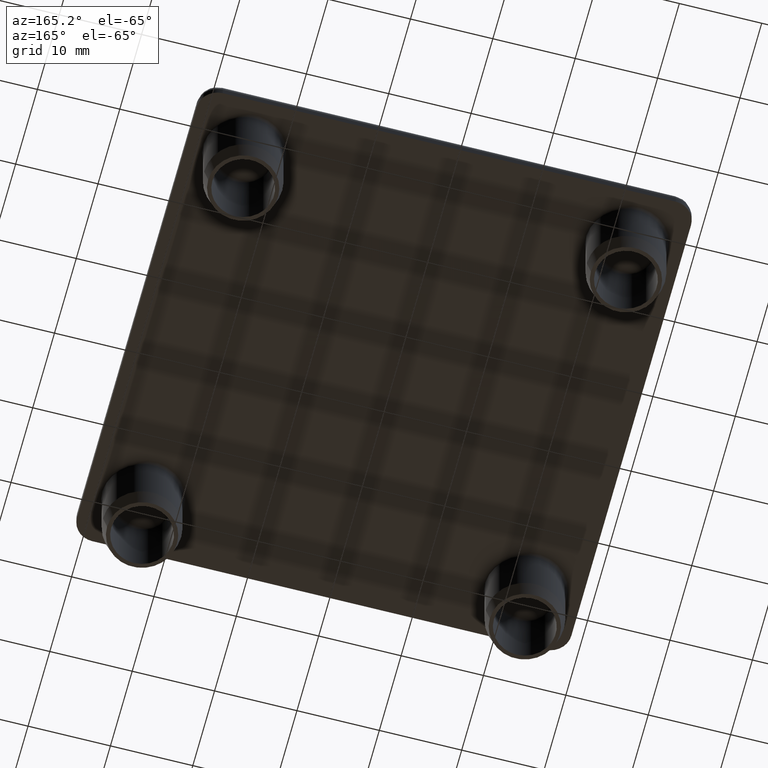
[diagram: clean part render]
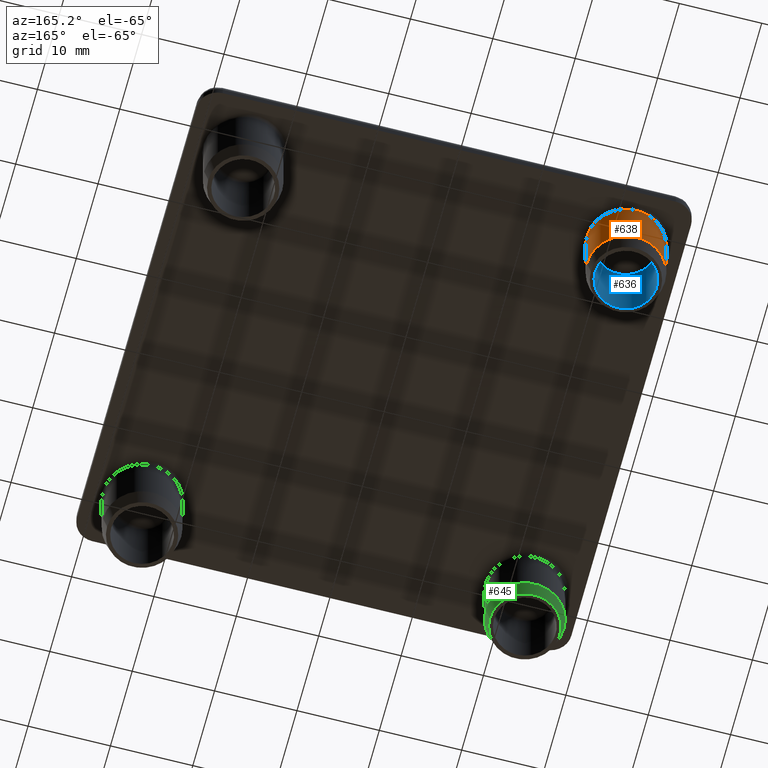
[diagram: same view with three faces highlighted in distinct colors, each labeled with its STEP entity id]
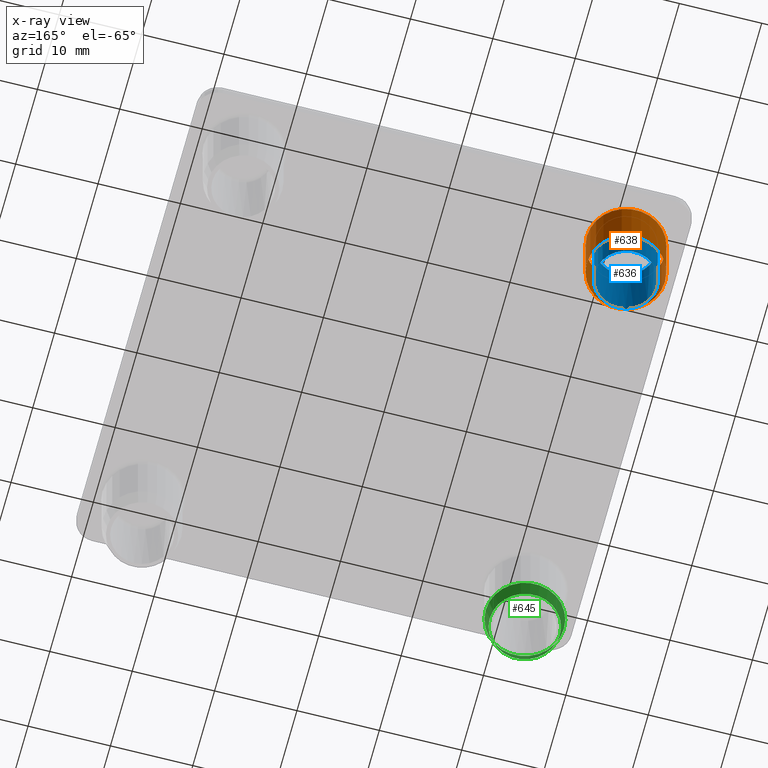
[diagram: x-ray of the same camera — body ghosted, the three highlighted faces saturated]
A machine part, auxiliary view with three faces highlighted in distinct colors.
The next image is the same camera in x-ray (body ghosted, the three faces saturated) — at least one of them is partly hidden behind the body in this view.
Their STEP definitions:

[orange] entity #638 — the highlighted cylindrical surface (bore or boss wall) has radius 4.75 mm, axis along (0, 0, 1).
#76=CYLINDRICAL_SURFACE('',#710,4.75);
#108=FACE_BOUND('',#192,.T.);
#134=FACE_OUTER_BOUND('',#191,.T.);
#191=EDGE_LOOP('',(#481));
#192=EDGE_LOOP('',(#482));
#250=CIRCLE('',#683,4.75);
#263=CIRCLE('',#701,4.75);
#314=VERTEX_POINT('',#1037);
#327=VERTEX_POINT('',#1068);
#374=EDGE_CURVE('',#314,#314,#250,.T.);
#387=EDGE_CURVE('',#327,#327,#263,.T.);
#481=ORIENTED_EDGE('',*,*,#374,.T.);
#482=ORIENTED_EDGE('',*,*,#387,.T.);
#638=ADVANCED_FACE('',(#134,#108),#76,.T.);
#683=AXIS2_PLACEMENT_3D('',#1038,#797,#798);
#701=AXIS2_PLACEMENT_3D('',#1069,#833,#834);
#710=AXIS2_PLACEMENT_3D('',#1081,#851,#852);
#797=DIRECTION('center_axis',(0.,0.,1.));
#798=DIRECTION('ref_axis',(1.,0.,0.));
#833=DIRECTION('center_axis',(0.,0.,-1.));
#834=DIRECTION('ref_axis',(-1.,0.,0.));
#851=DIRECTION('center_axis',(0.,0.,1.));
#852=DIRECTION('ref_axis',(0.,-1.,0.));
#1037=CARTESIAN_POINT('',(-18.48,53.23,-8.));
#1038=CARTESIAN_POINT('Origin',(-23.23,53.23,-8.));
#1068=CARTESIAN_POINT('',(-27.98,53.23,-0.500000000000003));
#1069=CARTESIAN_POINT('Origin',(-23.23,53.23,-0.500000000000002));
#1081=CARTESIAN_POINT('Origin',(-23.23,53.23,-8.00000001));

[blue] entity #636 — the highlighted cylindrical surface (bore or boss wall) has radius 3.75 mm, axis along (0, 0, 1).
#74=CYLINDRICAL_SURFACE('',#706,3.75);
#106=FACE_BOUND('',#188,.T.);
#132=FACE_OUTER_BOUND('',#187,.T.);
#187=EDGE_LOOP('',(#476));
#188=EDGE_LOOP('',(#477,#478));
#255=CIRCLE('',#691,3.75);
#267=CIRCLE('',#707,3.75);
#268=CIRCLE('',#708,3.75);
#319=VERTEX_POINT('',#1050);
#320=VERTEX_POINT('',#1051);
#330=VERTEX_POINT('',#1077);
#379=EDGE_CURVE('',#319,#320,#255,.T.);
#391=EDGE_CURVE('',#330,#330,#267,.T.);
#392=EDGE_CURVE('',#320,#319,#268,.T.);
#476=ORIENTED_EDGE('',*,*,#391,.F.);
#477=ORIENTED_EDGE('',*,*,#379,.T.);
#478=ORIENTED_EDGE('',*,*,#392,.T.);
#636=ADVANCED_FACE('',(#132,#106),#74,.F.);
#691=AXIS2_PLACEMENT_3D('',#1052,#813,#814);
#706=AXIS2_PLACEMENT_3D('',#1076,#843,#844);
#707=AXIS2_PLACEMENT_3D('',#1078,#845,#846);
#708=AXIS2_PLACEMENT_3D('',#1079,#847,#848);
#813=DIRECTION('center_axis',(0.,0.,1.));
#814=DIRECTION('ref_axis',(1.,0.,0.));
#843=DIRECTION('center_axis',(0.,0.,1.));
#844=DIRECTION('ref_axis',(1.,0.,0.));
#845=DIRECTION('center_axis',(0.,0.,1.));
#846=DIRECTION('ref_axis',(0.,-1.,0.));
#847=DIRECTION('center_axis',(0.,0.,1.));
#848=DIRECTION('ref_axis',(1.,0.,0.));
#1050=CARTESIAN_POINT('',(-26.98,53.23,-0.500000000000002));
#1051=CARTESIAN_POINT('',(-19.48,53.23,-0.500000000000002));
#1052=CARTESIAN_POINT('Origin',(-23.23,53.23,-0.500000000000002));
#1076=CARTESIAN_POINT('Origin',(-23.23,53.23,-10.00000001));
#1077=CARTESIAN_POINT('',(-23.23,49.48,-10.));
#1078=CARTESIAN_POINT('Origin',(-23.23,53.23,-10.));
#1079=CARTESIAN_POINT('Origin',(-23.23,53.23,-0.500000000000002));

[green] entity #645 — the highlighted conical surface has half-angle 14.036 deg.
#113=FACE_BOUND('',#204,.T.);
#141=FACE_OUTER_BOUND('',#203,.T.);
#203=EDGE_LOOP('',(#501));
#204=EDGE_LOOP('',(#502));
#285=CIRCLE('',#734,4.25);
#286=CIRCLE('',#735,4.75);
#345=VERTEX_POINT('',#1119);
#346=VERTEX_POINT('',#1121);
#409=EDGE_CURVE('',#345,#345,#285,.T.);
#410=EDGE_CURVE('',#346,#346,#286,.T.);
#501=ORIENTED_EDGE('',*,*,#409,.F.);
#502=ORIENTED_EDGE('',*,*,#410,.F.);
#627=CONICAL_SURFACE('',#733,0.498749999999998,14.0362434679265);
#645=ADVANCED_FACE('',(#141,#113),#627,.T.);
#733=AXIS2_PLACEMENT_3D('',#1118,#897,#898);
#734=AXIS2_PLACEMENT_3D('',#1120,#899,#900);
#735=AXIS2_PLACEMENT_3D('',#1122,#901,#902);
#897=DIRECTION('center_axis',(9.99690689603178E-16,-5.21417997443532E-18,
1.));
#898=DIRECTION('ref_axis',(0.581108581114917,-0.813826036051076,-5.85172273608948E-16));
#899=DIRECTION('center_axis',(0.,0.,-1.));
#900=DIRECTION('ref_axis',(-1.,0.,0.));
#901=DIRECTION('center_axis',(0.,0.,1.));
#902=DIRECTION('ref_axis',(-1.,0.,0.));
#1118=CARTESIAN_POINT('Origin',(-23.23,6.77,-25.005));
#1119=CARTESIAN_POINT('',(-18.98,6.77,-10.));
#1120=CARTESIAN_POINT('Origin',(-23.23,6.77,-10.));
#1121=CARTESIAN_POINT('',(-18.48,6.77,-8.));
#1122=CARTESIAN_POINT('Origin',(-23.23,6.77,-8.));